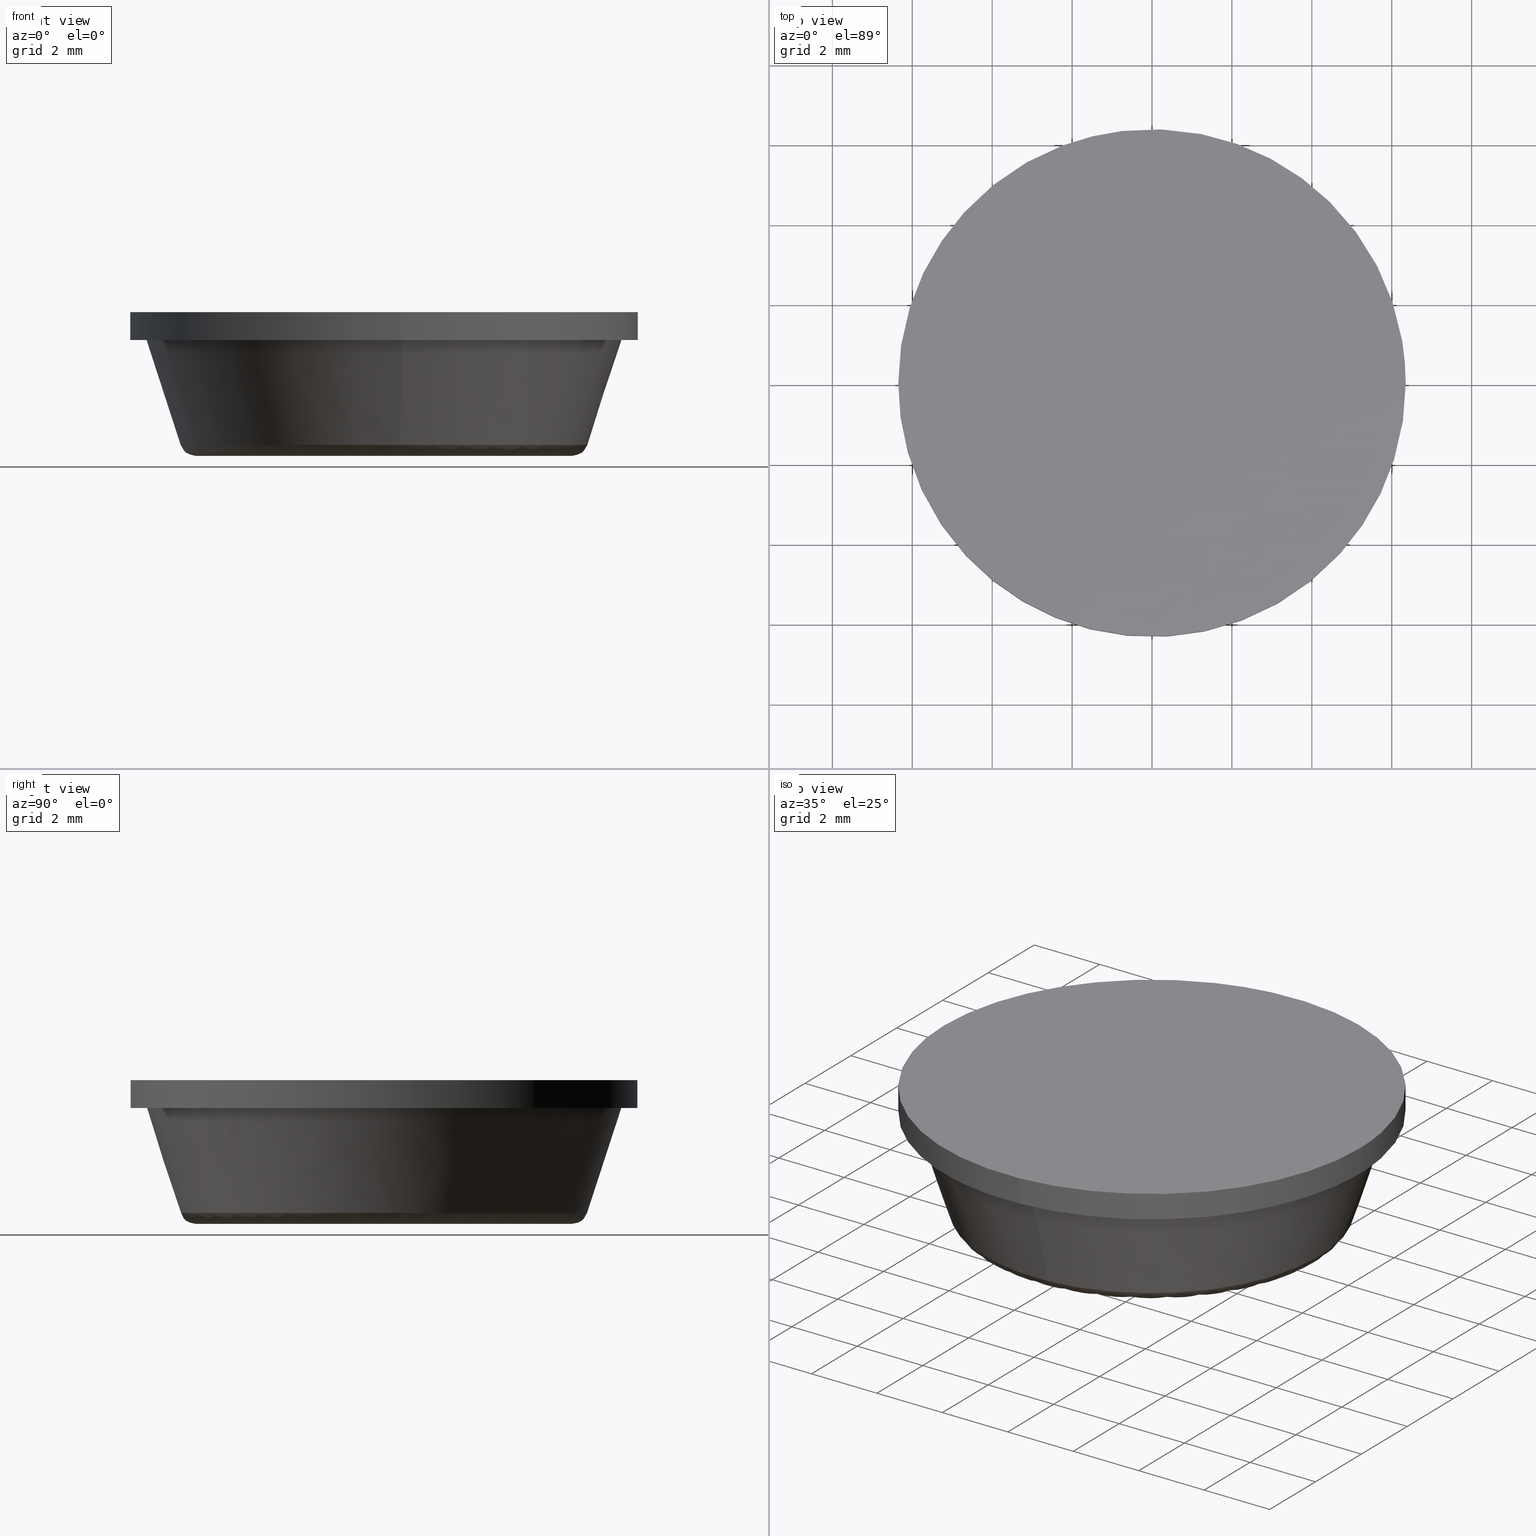
[diagram: canonical four-view strip — front | top / right | iso, engineering-drawing reading convention]
A machine part, canonical four-view strip (front | top / right | iso — engineering-drawing reading convention). The complete STEP part file that produces these views, byte-faithful:
ISO-10303-21;
HEADER;
/****************************************************************
 * Generated by software with PDE/Lib inside                    *
 * PDElib Version 4.4.1-0003, patched  Thursday August 19 11:58 *
 * International Technegroup Inc. (www.iti-oh.com)              *
 ****************************************************************/
FILE_DESCRIPTION((''),'2;1');
FILE_NAME('','2005-12-14T15:42:00',(''),(''),'','CADfix','');
FILE_SCHEMA(('AUTOMOTIVE_DESIGN'));
ENDSEC;
DATA;
#5=APPLICATION_CONTEXT('automotive design');
#6=APPLICATION_PROTOCOL_DEFINITION('Draft International Standard','automotive_design',1998,#5);
#7=PRODUCT_CONTEXT('None',#5,'mechanical');
#8=PRODUCT('rubber foot','','None',(#7));
#9=PRODUCT_RELATED_PRODUCT_CATEGORY('part','description',(#8));
#10=PRODUCT_DEFINITION_FORMATION('None','None',#8);
#11=PRODUCT_DEFINITION_CONTEXT('part definition',#5,'design');
#12=PRODUCT_DEFINITION('None','None',#10,#11);
#18=(NAMED_UNIT(*)PLANE_ANGLE_UNIT()SI_UNIT($,.RADIAN.));
#19=DIMENSIONAL_EXPONENTS(0.0,0.0,0.0,0.0,0.0,0.0,0.0);
#20=PLANE_ANGLE_MEASURE_WITH_UNIT(PLANE_ANGLE_MEASURE(0.017453292500000),#18);
#24=(CONVERSION_BASED_UNIT('DEGREE',#20)NAMED_UNIT(#19)PLANE_ANGLE_UNIT());
#28=(NAMED_UNIT(*)SI_UNIT($,.STERADIAN.)SOLID_ANGLE_UNIT());
#32=(LENGTH_UNIT()NAMED_UNIT(*)SI_UNIT(.MILLI.,.METRE.));
#34=UNCERTAINTY_MEASURE_WITH_UNIT(LENGTH_MEASURE(0.001000000000000),#32,'DISTANCE_ACCURACY_VALUE','');
#36=(GEOMETRIC_REPRESENTATION_CONTEXT(3)GLOBAL_UNCERTAINTY_ASSIGNED_CONTEXT((#34))GLOBAL_UNIT_ASSIGNED_CONTEXT((#24,#28,#32))REPRESENTATION_CONTEXT('None','None'));
#37=AXIS2_PLACEMENT_3D('',#38,#39,#40);
#38=CARTESIAN_POINT('',(0.0,0.0,0.0));
#39=DIRECTION('',(0.0,0.0,1.0));
#40=DIRECTION('',(1.0,0.0,0.0));
#41=ADVANCED_BREP_SHAPE_REPRESENTATION('',(#37,#645),#36);
#42=PRODUCT_DEFINITION_SHAPE('','',#12);
#43=SHAPE_DEFINITION_REPRESENTATION(#42,#41);
#44=CARTESIAN_POINT('',(-4.713012299098148,-1.864711029409133,0.210803032301656));
#45=CARTESIAN_POINT('',(-3.335371016258308,-5.346666253231072,0.210803032301656));
#46=CARTESIAN_POINT('',(0.397669461565919,-5.052869595980917,0.210803032301656));
#47=CARTESIAN_POINT('',(-5.545814915031673,-2.194210747360045,2.967229924192459));
#48=CARTESIAN_POINT('',(-3.924740517369158,-6.291437316753732,2.967229924192459));
#49=CARTESIAN_POINT('',(0.467938781239102,-5.945725958420095,2.967229924192459));
#57=(BOUNDED_SURFACE()B_SPLINE_SURFACE(2,1,((#44,#47),(#45,#48),(#46,#49)),.UNSPECIFIED.,.F.,.F.,.U.)B_SPLINE_SURFACE_WITH_KNOTS((3,3),(2,2),(0.0,7.851446740555091),(0.0,2.898278708401635),.UNSPECIFIED.)GEOMETRIC_REPRESENTATION_ITEM()RATIONAL_B_SPLINE_SURFACE(((0.906274169979695,0.906274169979695),(0.765685424949238,0.765685424949238),(1.0,1.0)))REPRESENTATION_ITEM('')SURFACE());
#58=CARTESIAN_POINT('',(0.466222470442264,-5.923948546619458,2.899998103247859));
#59=VERTEX_POINT('',#58);
#60=CARTESIAN_POINT('',(-5.525502656105997,-2.186174168874863,2.900000000000284));
#61=VERTEX_POINT('',#60);
#62=CARTESIAN_POINT('',(0.466222470442264,-5.923948546619459,2.899998103247860));
#63=CARTESIAN_POINT('',(0.233471065417052,-5.942266401944268,2.899998153683463));
#64=CARTESIAN_POINT('',(-0.000000045711487,-5.942266419177854,2.899998206887088));
#65=CARTESIAN_POINT('',(-4.039398402529002,-5.942266717344607,2.899999127389149));
#66=CARTESIAN_POINT('',(-5.525502656105997,-2.186174168874862,2.900000000000284));
#74=(BOUNDED_CURVE()B_SPLINE_CURVE(2,(#62,#63,#64,#65,#66),.UNSPECIFIED.,.F.,.U.)B_SPLINE_CURVE_WITH_KNOTS((3,2,3),(0.736331369405652,0.750000000000000,0.937532549939383),.UNSPECIFIED.)CURVE()GEOMETRIC_REPRESENTATION_ITEM()RATIONAL_B_SPLINE_CURVE((0.969723499695625,0.983986203153798,1.0,0.780291951263839,0.890203187501265))REPRESENTATION_ITEM(''));
#75=EDGE_CURVE('',#59,#61,#74,.T.);
#76=ORIENTED_EDGE('',*,*,#75,.T.);
#77=CARTESIAN_POINT('',(-4.732829137074683,-1.872551593788798,0.276393202250402));
#78=VERTEX_POINT('',#77);
#79=CARTESIAN_POINT('',(-4.732829137074683,-1.872551593788798,0.276393202250402));
#80=CARTESIAN_POINT('',(-5.525502656105997,-2.186174168874863,2.900000000000284));
#81=QUASI_UNIFORM_CURVE('',1,(#79,#80),.UNSPECIFIED.,.F.,.U.);
#82=EDGE_CURVE('',#78,#61,#81,.T.);
#83=ORIENTED_EDGE('',*,*,#82,.F.);
#84=CARTESIAN_POINT('',(0.399341545321534,-5.074115434469849,0.276393202250665));
#85=VERTEX_POINT('',#84);
#86=CARTESIAN_POINT('',(0.399341545321534,-5.074115434469849,0.276393202250665));
#87=CARTESIAN_POINT('',(0.199979006931943,-5.089805606518070,0.276393202250013));
#88=CARTESIAN_POINT('',(0.0,-5.089805606518071,0.276393202250013));
#89=CARTESIAN_POINT('',(-3.459917321607990,-5.089805606518072,0.276393202250013));
#90=CARTESIAN_POINT('',(-4.732829137074683,-1.872551593788798,0.276393202250402));
#98=(BOUNDED_CURVE()B_SPLINE_CURVE(2,(#86,#87,#88,#89,#90),.UNSPECIFIED.,.F.,.U.)B_SPLINE_CURVE_WITH_KNOTS((3,2,3),(0.736331300632524,0.750000000000000,0.937532549939335),.UNSPECIFIED.)CURVE()GEOMETRIC_REPRESENTATION_ITEM()RATIONAL_B_SPLINE_CURVE((0.969723356171309,0.983986122581066,1.0,0.780291951263895,0.890203187501209))REPRESENTATION_ITEM(''));
#99=EDGE_CURVE('',#85,#78,#98,.T.);
#100=ORIENTED_EDGE('',*,*,#99,.F.);
#101=CARTESIAN_POINT('',(0.399341545321534,-5.074115434469849,0.276393202250665));
#102=CARTESIAN_POINT('',(0.466222470442264,-5.923948546619458,2.899998103247859));
#103=QUASI_UNIFORM_CURVE('',1,(#101,#102),.UNSPECIFIED.,.F.,.U.);
#104=EDGE_CURVE('',#85,#59,#103,.T.);
#105=ORIENTED_EDGE('',*,*,#104,.T.);
#106=EDGE_LOOP('',(#76,#83,#100,#105));
#107=FACE_OUTER_BOUND('',#106,.T.);
#108=ADVANCED_FACE('',(#107),#57,.T.);
#109=CARTESIAN_POINT('',(0.397669461565919,-5.052869595980917,0.210803032301656));
#110=CARTESIAN_POINT('',(5.450539057546835,-4.655200134414998,0.210803032301656));
#111=CARTESIAN_POINT('',(5.052869595980917,0.397669461565919,0.210803032301656));
#112=CARTESIAN_POINT('',(4.655200134414998,5.450539057546835,0.210803032301656));
#113=CARTESIAN_POINT('',(-0.397669461565919,5.052869595980917,0.210803032301656));
#114=CARTESIAN_POINT('',(-5.450539057546835,4.655200134414998,0.210803032301656));
#115=CARTESIAN_POINT('',(-5.052869595980917,-0.397669461565919,0.210803032301656));
#116=CARTESIAN_POINT('',(-4.993131250110380,-1.156717114797357,0.210803032301656));
#117=CARTESIAN_POINT('',(-4.713012299098148,-1.864711029409133,0.210803032301656));
#118=CARTESIAN_POINT('',(0.467938781239102,-5.945725958420095,2.967229924192459));
#119=CARTESIAN_POINT('',(6.413664739659197,-5.477787177180994,2.967229924192458));
#120=CARTESIAN_POINT('',(5.945725958420095,0.467938781239102,2.967229924192459));
#121=CARTESIAN_POINT('',(5.477787177180994,6.413664739659197,2.967229924192458));
#122=CARTESIAN_POINT('',(-0.467938781239102,5.945725958420095,2.967229924192459));
#123=CARTESIAN_POINT('',(-6.413664739659197,5.477787177180994,2.967229924192458));
#124=CARTESIAN_POINT('',(-5.945725958420095,-0.467938781239102,2.967229924192459));
#125=CARTESIAN_POINT('',(-5.875431677713140,-1.361112303683804,2.967229924192459));
#126=CARTESIAN_POINT('',(-5.545814915031673,-2.194210747360045,2.967229924192459));
#134=(BOUNDED_SURFACE()B_SPLINE_SURFACE(2,1,((#109,#118),(#110,#119),(#111,#120),(#112,#121),(#113,#122),(#114,#123),(#115,#124),(#116,#125),(#117,#126)),.UNSPECIFIED.,.F.,.F.,.U.)B_SPLINE_SURFACE_WITH_KNOTS((3,2,2,2,3),(2,2),(0.0,9.881663190302827,19.763326380605658,29.644989570908479,31.621322208969051),(0.0,2.898278708401635),.UNSPECIFIED.)GEOMETRIC_REPRESENTATION_ITEM()RATIONAL_B_SPLINE_SURFACE(((1.0,1.0),(0.707106781186548,0.707106781186548),(1.0,1.0),(0.707106781186548,0.707106781186548),(1.0,1.0),(0.707106781186548,0.707106781186548),(1.0,1.0),(0.941421356237310,0.941421356237310),(0.906274169979695,0.906274169979695)))REPRESENTATION_ITEM('')SURFACE());
#135=CARTESIAN_POINT('',(-5.942267000000000,0.0,2.900000000000000));
#136=VERTEX_POINT('',#135);
#137=CARTESIAN_POINT('',(-5.525502656105997,-2.186174168874862,2.900000000000284));
#138=CARTESIAN_POINT('',(-5.942267000000001,-1.132812308716836,2.900000000000000));
#139=CARTESIAN_POINT('',(-5.942267000000000,0.0,2.900000000000000));
#147=(BOUNDED_CURVE()B_SPLINE_CURVE(2,(#137,#138,#139),.UNSPECIFIED.,.F.,.U.)B_SPLINE_CURVE_WITH_KNOTS((3,3),(0.937532549939383,1.0),.UNSPECIFIED.)CURVE()GEOMETRIC_REPRESENTATION_ITEM()RATIONAL_B_SPLINE_CURVE((0.890203187501265,0.926814829922709,1.0))REPRESENTATION_ITEM(''));
#148=EDGE_CURVE('',#61,#136,#147,.T.);
#149=ORIENTED_EDGE('',*,*,#148,.T.);
#150=CARTESIAN_POINT('',(5.942267000000000,0.0,2.900000000000000));
#151=VERTEX_POINT('',#150);
#152=CARTESIAN_POINT('',(-5.942267000000000,0.0,2.900000000000000));
#153=CARTESIAN_POINT('',(-5.942267000000001,5.942267000000001,2.900000000000000));
#154=CARTESIAN_POINT('',(0.0,5.942267000000000,2.900000000000000));
#155=CARTESIAN_POINT('',(5.942267000000001,5.942267000000001,2.900000000000000));
#156=CARTESIAN_POINT('',(5.942267000000000,0.0,2.900000000000000));
#164=(BOUNDED_CURVE()B_SPLINE_CURVE(2,(#152,#153,#154,#155,#156),.UNSPECIFIED.,.F.,.U.)B_SPLINE_CURVE_WITH_KNOTS((3,2,3),(0.0,0.250000000000000,0.500000000000000),.UNSPECIFIED.)CURVE()GEOMETRIC_REPRESENTATION_ITEM()RATIONAL_B_SPLINE_CURVE((1.0,0.707106781186548,1.0,0.707106781186548,1.0))REPRESENTATION_ITEM(''));
#165=EDGE_CURVE('',#136,#151,#164,.T.);
#166=ORIENTED_EDGE('',*,*,#165,.T.);
#167=CARTESIAN_POINT('',(5.942267000000000,0.0,2.900000000000000));
#168=CARTESIAN_POINT('',(5.942266975823248,-5.492977017010159,2.899999051623929));
#169=CARTESIAN_POINT('',(0.466222470442264,-5.923948546619459,2.899998103247860));
#177=(BOUNDED_CURVE()B_SPLINE_CURVE(2,(#167,#168,#169),.UNSPECIFIED.,.F.,.U.)B_SPLINE_CURVE_WITH_KNOTS((3,3),(0.500000000000000,0.736331369405652),.UNSPECIFIED.)CURVE()GEOMETRIC_REPRESENTATION_ITEM()RATIONAL_B_SPLINE_CURVE((1.0,0.723120578032750,0.969723499695625))REPRESENTATION_ITEM(''));
#178=EDGE_CURVE('',#151,#59,#177,.T.);
#179=ORIENTED_EDGE('',*,*,#178,.T.);
#180=ORIENTED_EDGE('',*,*,#104,.F.);
#181=CARTESIAN_POINT('',(5.089805606518071,0.0,0.276393202250013));
#182=VERTEX_POINT('',#181);
#183=CARTESIAN_POINT('',(5.089805606518071,0.0,0.276393202250013));
#184=CARTESIAN_POINT('',(5.089805606518071,-4.704967907047252,0.276393202250012));
#185=CARTESIAN_POINT('',(0.399341545321534,-5.074115434469849,0.276393202250665));
#193=(BOUNDED_CURVE()B_SPLINE_CURVE(2,(#183,#184,#185),.UNSPECIFIED.,.F.,.U.)B_SPLINE_CURVE_WITH_KNOTS((3,3),(0.500000000000000,0.736331300632524),.UNSPECIFIED.)CURVE()GEOMETRIC_REPRESENTATION_ITEM()RATIONAL_B_SPLINE_CURVE((1.0,0.723120658605481,0.969723356171309))REPRESENTATION_ITEM(''));
#194=EDGE_CURVE('',#182,#85,#193,.T.);
#195=ORIENTED_EDGE('',*,*,#194,.F.);
#196=CARTESIAN_POINT('',(0.877675751714208,5.013562245248458,0.276393202245518));
#197=VERTEX_POINT('',#196);
#198=CARTESIAN_POINT('',(0.877675751714208,5.013562245248458,0.276393202245518));
#199=CARTESIAN_POINT('',(5.089805606518071,4.276185494786597,0.276393202250013));
#200=CARTESIAN_POINT('',(5.089805606518071,0.0,0.276393202250013));
#208=(BOUNDED_CURVE()B_SPLINE_CURVE(2,(#198,#199,#200),.UNSPECIFIED.,.F.,.U.)B_SPLINE_CURVE_WITH_KNOTS((3,3),(0.279646299375439,0.500000000000000),.UNSPECIFIED.)CURVE()GEOMETRIC_REPRESENTATION_ITEM()RATIONAL_B_SPLINE_CURVE((0.938771991543156,0.741839581386466,1.0))REPRESENTATION_ITEM(''));
#209=EDGE_CURVE('',#197,#182,#208,.T.);
#210=ORIENTED_EDGE('',*,*,#209,.F.);
#211=CARTESIAN_POINT('',(-4.878690106847490,1.450691141708440,0.276393454745976));
#212=VERTEX_POINT('',#211);
#213=CARTESIAN_POINT('',(-4.878690106847490,1.450691141708439,0.276393454745976));
#214=CARTESIAN_POINT('',(-3.796589907877530,5.089805606518072,0.276393202250013));
#215=CARTESIAN_POINT('',(0.0,5.089805606518071,0.276393202250013));
#216=CARTESIAN_POINT('',(0.442149491866362,5.089805606518071,0.276393202250013));
#217=CARTESIAN_POINT('',(0.877675751714208,5.013562245248458,0.276393202245518));
#225=(BOUNDED_CURVE()B_SPLINE_CURVE(2,(#213,#214,#215,#216,#217),.UNSPECIFIED.,.F.,.U.)B_SPLINE_CURVE_WITH_KNOTS((3,2,3),(0.048526611977056,0.250000000000000,0.279646299375439),.UNSPECIFIED.)CURVE()GEOMETRIC_REPRESENTATION_ITEM()RATIONAL_B_SPLINE_CURVE((0.908365934391083,0.763959243506833,1.0,0.965267199800082,0.938771991543156))REPRESENTATION_ITEM(''));
#226=EDGE_CURVE('',#212,#197,#225,.T.);
#227=ORIENTED_EDGE('',*,*,#226,.F.);
#228=CARTESIAN_POINT('',(-5.089805606518071,0.0,0.276393202250013));
#229=VERTEX_POINT('',#228);
#230=CARTESIAN_POINT('',(-5.089805606518071,0.0,0.276393202250013));
#231=CARTESIAN_POINT('',(-5.089805606518071,0.740707129534679,0.276393202250013));
#232=CARTESIAN_POINT('',(-4.878690106847490,1.450691141708439,0.276393454745976));
#240=(BOUNDED_CURVE()B_SPLINE_CURVE(2,(#230,#231,#232),.UNSPECIFIED.,.F.,.U.)B_SPLINE_CURVE_WITH_KNOTS((3,3),(0.0,0.048526611977056),.UNSPECIFIED.)CURVE()GEOMETRIC_REPRESENTATION_ITEM()RATIONAL_B_SPLINE_CURVE((1.0,0.943147537679714,0.908365934391083))REPRESENTATION_ITEM(''));
#241=EDGE_CURVE('',#229,#212,#240,.T.);
#242=ORIENTED_EDGE('',*,*,#241,.F.);
#243=CARTESIAN_POINT('',(-4.732829137074683,-1.872551593788799,0.276393202250402));
#244=CARTESIAN_POINT('',(-5.089805606518071,-0.970302149002113,0.276393202250013));
#245=CARTESIAN_POINT('',(-5.089805606518071,0.0,0.276393202250013));
#253=(BOUNDED_CURVE()B_SPLINE_CURVE(2,(#243,#244,#245),.UNSPECIFIED.,.F.,.U.)B_SPLINE_CURVE_WITH_KNOTS((3,3),(0.937532549939335,1.0),.UNSPECIFIED.)CURVE()GEOMETRIC_REPRESENTATION_ITEM()RATIONAL_B_SPLINE_CURVE((0.890203187501210,0.926814829922653,1.0))REPRESENTATION_ITEM(''));
#254=EDGE_CURVE('',#78,#229,#253,.T.);
#255=ORIENTED_EDGE('',*,*,#254,.F.);
#256=ORIENTED_EDGE('',*,*,#82,.T.);
#257=EDGE_LOOP('',(#149,#166,#179,#180,#195,#210,#227,#242,#255,#256));
#258=FACE_OUTER_BOUND('',#257,.T.);
#259=ADVANCED_FACE('',(#258),#134,.T.);
#260=CARTESIAN_POINT('',(-0.749517390070416,6.305610492409281,3.617500000000001));
#261=CARTESIAN_POINT('',(-0.569053526851158,6.327061358098645,3.617500000000001));
#262=CARTESIAN_POINT('',(-0.387658226046342,6.338155969978853,3.617500000000001));
#263=CARTESIAN_POINT('',(5.950497743932512,6.725814196025195,3.617500000000000));
#264=CARTESIAN_POINT('',(6.338155969978853,0.387658226046342,3.617500000000001));
#265=CARTESIAN_POINT('',(6.725814196025195,-5.950497743932512,3.617500000000000));
#266=CARTESIAN_POINT('',(0.387658226046342,-6.338155969978853,3.617500000000001));
#267=CARTESIAN_POINT('',(-0.749517390070416,6.305610492409281,2.882062500000000));
#268=CARTESIAN_POINT('',(-0.569053526851158,6.327061358098645,2.882062500000000));
#269=CARTESIAN_POINT('',(-0.387658226046342,6.338155969978853,2.882062500000000));
#270=CARTESIAN_POINT('',(5.950497743932512,6.725814196025195,2.882062500000000));
#271=CARTESIAN_POINT('',(6.338155969978853,0.387658226046342,2.882062500000000));
#272=CARTESIAN_POINT('',(6.725814196025195,-5.950497743932512,2.882062500000000));
#273=CARTESIAN_POINT('',(0.387658226046342,-6.338155969978853,2.882062500000000));
#281=(BOUNDED_SURFACE()B_SPLINE_SURFACE(2,1,((#260,#267),(#261,#268),(#262,#269),(#263,#270),(#264,#271),(#265,#272),(#266,#273)),.UNSPECIFIED.,.F.,.F.,.U.)B_SPLINE_SURFACE_WITH_KNOTS((3,2,2,3),(2,2),(0.0,0.420840979371065,10.941865463647680,21.462889947924289),(0.0,1.0),.UNSPECIFIED.)GEOMETRIC_REPRESENTATION_ITEM()RATIONAL_B_SPLINE_SURFACE(((0.977505800795127,0.977505800795127),(0.988284271247462,0.988284271247462),(1.0,1.0),(0.707106781186548,0.707106781186548),(1.0,1.0),(0.707106781186548,0.707106781186548),(1.0,1.0)))REPRESENTATION_ITEM('')SURFACE());
#282=CARTESIAN_POINT('',(-0.749513374682920,6.305610969696359,2.900000000000056));
#283=VERTEX_POINT('',#282);
#284=CARTESIAN_POINT('',(6.350000000000000,0.0,2.900000000000000));
#285=VERTEX_POINT('',#284);
#286=CARTESIAN_POINT('',(-0.749513374682920,6.305610969696359,2.900000000000056));
#287=CARTESIAN_POINT('',(-0.376071130870991,6.350000000000000,2.900000000000000));
#288=CARTESIAN_POINT('',(0.0,6.350000000000000,2.900000000000000));
#289=CARTESIAN_POINT('',(6.350000000000000,6.350000000000000,2.900000000000001));
#290=CARTESIAN_POINT('',(6.350000000000000,0.0,2.900000000000000));
#298=(BOUNDED_CURVE()B_SPLINE_CURVE(2,(#286,#287,#288,#289,#290),.UNSPECIFIED.,.F.,.U.)B_SPLINE_CURVE_WITH_KNOTS((3,2,3),(0.229562581136241,0.250000000000000,0.500000000000000),.UNSPECIFIED.)CURVE()GEOMETRIC_REPRESENTATION_ITEM()RATIONAL_B_SPLINE_CURVE((0.956026965128767,0.976056074419019,1.0,0.707106781186547,1.0))REPRESENTATION_ITEM(''));
#299=EDGE_CURVE('',#283,#285,#298,.T.);
#300=ORIENTED_EDGE('',*,*,#299,.F.);
#301=CARTESIAN_POINT('',(-0.749513424211019,6.305610963809258,3.600000000000000));
#302=VERTEX_POINT('',#301);
#303=CARTESIAN_POINT('',(-0.749513424211019,6.305610963809258,3.600000000000000));
#304=CARTESIAN_POINT('',(-0.749513374682920,6.305610969696359,2.900000000000056));
#305=QUASI_UNIFORM_CURVE('',1,(#303,#304),.UNSPECIFIED.,.F.,.U.);
#306=EDGE_CURVE('',#302,#283,#305,.T.);
#307=ORIENTED_EDGE('',*,*,#306,.F.);
#308=CARTESIAN_POINT('',(6.350000000000000,0.0,3.600000000000000));
#309=VERTEX_POINT('',#308);
#310=CARTESIAN_POINT('',(-0.749513424211019,6.305610963809258,3.600000000000000));
#311=CARTESIAN_POINT('',(-0.376071155896838,6.350000000000000,3.600000000000000));
#312=CARTESIAN_POINT('',(0.0,6.350000000000000,3.600000000000000));
#313=CARTESIAN_POINT('',(6.350000000000000,6.350000000000000,3.600000000000000));
#314=CARTESIAN_POINT('',(6.350000000000000,0.0,3.600000000000000));
#322=(BOUNDED_CURVE()B_SPLINE_CURVE(2,(#310,#311,#312,#313,#314),.UNSPECIFIED.,.F.,.U.)B_SPLINE_CURVE_WITH_KNOTS((3,2,3),(0.229562579808786,0.250000000000000,0.500000000000000),.UNSPECIFIED.)CURVE()GEOMETRIC_REPRESENTATION_ITEM()RATIONAL_B_SPLINE_CURVE((0.956026962526900,0.976056072863809,1.0,0.707106781186547,1.0))REPRESENTATION_ITEM(''));
#323=EDGE_CURVE('',#302,#309,#322,.T.);
#324=ORIENTED_EDGE('',*,*,#323,.T.);
#325=CARTESIAN_POINT('',(0.387655985912206,-6.338156106990533,3.600000000000000));
#326=VERTEX_POINT('',#325);
#327=CARTESIAN_POINT('',(6.350000000000000,0.0,3.600000000000000));
#328=CARTESIAN_POINT('',(6.349999999999999,-5.973485640042394,3.600000000000001));
#329=CARTESIAN_POINT('',(0.387655985912206,-6.338156106990533,3.600000000000000));
#337=(BOUNDED_CURVE()B_SPLINE_CURVE(2,(#327,#328,#329),.UNSPECIFIED.,.F.,.U.)B_SPLINE_CURVE_WITH_KNOTS((3,3),(0.500000000000000,0.739333023226263),.UNSPECIFIED.)CURVE()GEOMETRIC_REPRESENTATION_ITEM()RATIONAL_B_SPLINE_CURVE((1.0,0.719603921835620,0.976072172374189))REPRESENTATION_ITEM(''));
#338=EDGE_CURVE('',#309,#326,#337,.T.);
#339=ORIENTED_EDGE('',*,*,#338,.T.);
#340=CARTESIAN_POINT('',(0.387655957948693,-6.338156108700835,2.900000000000037));
#341=VERTEX_POINT('',#340);
#342=CARTESIAN_POINT('',(0.387655985912206,-6.338156106990533,3.600000000000000));
#343=CARTESIAN_POINT('',(0.387655957948693,-6.338156108700835,2.900000000000037));
#344=QUASI_UNIFORM_CURVE('',1,(#342,#343),.UNSPECIFIED.,.F.,.U.);
#345=EDGE_CURVE('',#326,#341,#344,.T.);
#346=ORIENTED_EDGE('',*,*,#345,.T.);
#347=CARTESIAN_POINT('',(6.350000000000000,0.0,2.900000000000000));
#348=CARTESIAN_POINT('',(6.349999999999999,-5.973485666446256,2.900000000000000));
#349=CARTESIAN_POINT('',(0.387655957948693,-6.338156108700835,2.900000000000037));
#357=(BOUNDED_CURVE()B_SPLINE_CURVE(2,(#347,#348,#349),.UNSPECIFIED.,.F.,.U.)B_SPLINE_CURVE_WITH_KNOTS((3,3),(0.500000000000000,0.739333023987528),.UNSPECIFIED.)CURVE()GEOMETRIC_REPRESENTATION_ITEM()RATIONAL_B_SPLINE_CURVE((1.0,0.719603920943743,0.976072174005725))REPRESENTATION_ITEM(''));
#358=EDGE_CURVE('',#285,#341,#357,.T.);
#359=ORIENTED_EDGE('',*,*,#358,.F.);
#360=EDGE_LOOP('',(#300,#307,#324,#339,#346,#359));
#361=FACE_OUTER_BOUND('',#360,.T.);
#362=ADVANCED_FACE('',(#361),#281,.T.);
#363=CARTESIAN_POINT('',(0.387658226046342,-6.338155969978853,3.617500000000001));
#364=CARTESIAN_POINT('',(-5.950497743932512,-6.725814196025195,3.617500000000000));
#365=CARTESIAN_POINT('',(-6.338155969978853,-0.387658226046342,3.617500000000001));
#366=CARTESIAN_POINT('',(-6.704242349251549,5.597801166830830,3.617500000000001));
#367=CARTESIAN_POINT('',(-0.749517390070416,6.305610492409281,3.617500000000001));
#368=CARTESIAN_POINT('',(0.387658226046342,-6.338155969978853,2.882062500000000));
#369=CARTESIAN_POINT('',(-5.950497743932512,-6.725814196025195,2.882062500000000));
#370=CARTESIAN_POINT('',(-6.338155969978853,-0.387658226046342,2.882062500000000));
#371=CARTESIAN_POINT('',(-6.704242349251549,5.597801166830830,2.882062500000000));
#372=CARTESIAN_POINT('',(-0.749517390070416,6.305610492409281,2.882062500000000));
#380=(BOUNDED_SURFACE()B_SPLINE_SURFACE(2,1,((#363,#368),(#364,#369),(#365,#370),(#366,#371),(#367,#372)),.UNSPECIFIED.,.F.,.F.,.U.)B_SPLINE_SURFACE_WITH_KNOTS((3,2,3),(2,2),(0.0,10.521024484276611,20.621207989182160),(0.0,1.0),.UNSPECIFIED.)GEOMETRIC_REPRESENTATION_ITEM()RATIONAL_B_SPLINE_SURFACE(((1.0,1.0),(0.707106781186548,0.707106781186548),(1.0,1.0),(0.718822509939086,0.718822509939086),(0.977505800795127,0.977505800795127)))REPRESENTATION_ITEM('')SURFACE());
#381=CARTESIAN_POINT('',(-6.350000000000000,0.0,2.900000000000000));
#382=VERTEX_POINT('',#381);
#383=CARTESIAN_POINT('',(-6.350000000000000,0.0,2.900000000000000));
#384=CARTESIAN_POINT('',(-6.350000000000001,5.639911856545724,2.900000000000000));
#385=CARTESIAN_POINT('',(-0.749513374682920,6.305610969696359,2.900000000000056));
#393=(BOUNDED_CURVE()B_SPLINE_CURVE(2,(#383,#384,#385),.UNSPECIFIED.,.F.,.U.)B_SPLINE_CURVE_WITH_KNOTS((3,3),(0.0,0.229562581136241),.UNSPECIFIED.)CURVE()GEOMETRIC_REPRESENTATION_ITEM()RATIONAL_B_SPLINE_CURVE((1.0,0.731050706767529,0.956026965128767))REPRESENTATION_ITEM(''));
#394=EDGE_CURVE('',#382,#283,#393,.T.);
#395=ORIENTED_EDGE('',*,*,#394,.F.);
#396=CARTESIAN_POINT('',(0.387655957948693,-6.338156108700835,2.900000000000037));
#397=CARTESIAN_POINT('',(0.194008909717484,-6.350000000000001,2.900000000000000));
#398=CARTESIAN_POINT('',(0.0,-6.350000000000000,2.900000000000000));
#399=CARTESIAN_POINT('',(-6.350000000000000,-6.350000000000000,2.900000000000001));
#400=CARTESIAN_POINT('',(-6.350000000000000,0.0,2.900000000000000));
#408=(BOUNDED_CURVE()B_SPLINE_CURVE(2,(#396,#397,#398,#399,#400),.UNSPECIFIED.,.F.,.U.)B_SPLINE_CURVE_WITH_KNOTS((3,2,3),(0.739333023987528,0.750000000000000,1.0),.UNSPECIFIED.)CURVE()GEOMETRIC_REPRESENTATION_ITEM()RATIONAL_B_SPLINE_CURVE((0.976072174005725,0.987502860242804,1.0,0.707106781186547,1.0))REPRESENTATION_ITEM(''));
#409=EDGE_CURVE('',#341,#382,#408,.T.);
#410=ORIENTED_EDGE('',*,*,#409,.F.);
#411=ORIENTED_EDGE('',*,*,#345,.F.);
#412=CARTESIAN_POINT('',(-6.350000000000000,0.0,3.600000000000000));
#413=VERTEX_POINT('',#412);
#414=CARTESIAN_POINT('',(0.387655985912206,-6.338156106990533,3.600000000000000));
#415=CARTESIAN_POINT('',(0.194008923738444,-6.350000000000000,3.600000000000000));
#416=CARTESIAN_POINT('',(0.0,-6.350000000000000,3.600000000000000));
#417=CARTESIAN_POINT('',(-6.350000000000000,-6.350000000000000,3.600000000000000));
#418=CARTESIAN_POINT('',(-6.350000000000000,0.0,3.600000000000000));
#426=(BOUNDED_CURVE()B_SPLINE_CURVE(2,(#414,#415,#416,#417,#418),.UNSPECIFIED.,.F.,.U.)B_SPLINE_CURVE_WITH_KNOTS((3,2,3),(0.739333023226263,0.750000000000000,1.0),.UNSPECIFIED.)CURVE()GEOMETRIC_REPRESENTATION_ITEM()RATIONAL_B_SPLINE_CURVE((0.976072172374189,0.987502859350927,1.0,0.707106781186547,1.0))REPRESENTATION_ITEM(''));
#427=EDGE_CURVE('',#326,#413,#426,.T.);
#428=ORIENTED_EDGE('',*,*,#427,.T.);
#429=CARTESIAN_POINT('',(-6.350000000000000,0.0,3.600000000000000));
#430=CARTESIAN_POINT('',(-6.350000000000001,5.639911811934584,3.600000000000001));
#431=CARTESIAN_POINT('',(-0.749513424211019,6.305610963809258,3.600000000000000));
#439=(BOUNDED_CURVE()B_SPLINE_CURVE(2,(#429,#430,#431),.UNSPECIFIED.,.F.,.U.)B_SPLINE_CURVE_WITH_KNOTS((3,3),(0.0,0.229562579808786),.UNSPECIFIED.)CURVE()GEOMETRIC_REPRESENTATION_ITEM()RATIONAL_B_SPLINE_CURVE((1.0,0.731050708322738,0.956026962526900))REPRESENTATION_ITEM(''));
#440=EDGE_CURVE('',#413,#302,#439,.T.);
#441=ORIENTED_EDGE('',*,*,#440,.T.);
#442=ORIENTED_EDGE('',*,*,#306,.T.);
#443=EDGE_LOOP('',(#395,#410,#411,#428,#441,#442));
#444=FACE_OUTER_BOUND('',#443,.T.);
#445=ADVANCED_FACE('',(#444),#380,.T.);
#446=CARTESIAN_POINT('',(0.878806323483278,5.020017097255795,0.298758745948526));
#447=CARTESIAN_POINT('',(1.169594691955808,4.969111562063745,0.298758745948526));
#448=CARTESIAN_POINT('',(1.452560403880945,4.884970878522400,0.298758745948526));
#449=CARTESIAN_POINT('',(6.337531282403345,3.432410474641454,0.298758745948526));
#450=CARTESIAN_POINT('',(4.884970878522400,-1.452560403880945,0.298758745948526));
#451=CARTESIAN_POINT('',(3.432410474641456,-6.337531282403344,0.298758745948526));
#452=CARTESIAN_POINT('',(-1.452560403880943,-4.884970878522401,0.298758745948526));
#453=CARTESIAN_POINT('',(-6.337531282403344,-3.432410474641456,0.298758745948526));
#454=CARTESIAN_POINT('',(-4.884970878522401,1.452560403880943,0.298758745948526));
#455=CARTESIAN_POINT('',(0.864501099565993,4.938301175640435,-0.018335001152351));
#456=CARTESIAN_POINT('',(1.150556010150949,4.888224281595009,-0.018335001152351));
#457=CARTESIAN_POINT('',(1.428915601521608,4.805453241496649,-0.018335001152351));
#458=CARTESIAN_POINT('',(6.234368843018255,3.376537639975042,-0.018335001152351));
#459=CARTESIAN_POINT('',(4.805453241496649,-1.428915601521608,-0.018335001152351));
#460=CARTESIAN_POINT('',(3.376537639975044,-6.234368843018255,-0.018335001152351));
#461=CARTESIAN_POINT('',(-1.428915601521607,-4.805453241496650,-0.018335001152351));
#462=CARTESIAN_POINT('',(-6.234368843018255,-3.376537639975044,-0.018335001152351));
#463=CARTESIAN_POINT('',(-4.805453241496650,1.428915601521605,-0.018335001152351));
#464=CARTESIAN_POINT('',(0.808076875971959,4.615988329712414,0.000673209411410));
#465=CARTESIAN_POINT('',(1.075461565960180,4.569179852408078,0.000673209411410));
#466=CARTESIAN_POINT('',(1.335653194524397,4.491811109283043,0.000673209411410));
#467=CARTESIAN_POINT('',(5.827464303807438,3.156157914758646,0.000673209411410));
#468=CARTESIAN_POINT('',(4.491811109283043,-1.335653194524397,0.000673209411410));
#469=CARTESIAN_POINT('',(3.156157914758649,-5.827464303807438,0.000673209411410));
#470=CARTESIAN_POINT('',(-1.335653194524396,-4.491811109283044,0.000673209411410));
#471=CARTESIAN_POINT('',(-5.827464303807438,-3.156157914758649,0.000673209411410));
#472=CARTESIAN_POINT('',(-4.491811109283044,1.335653194524396,0.000673209411410));
#480=(BOUNDED_SURFACE()B_SPLINE_SURFACE(2,2,((#446,#455,#464),(#447,#456,#465),(#448,#457,#466),(#449,#458,#467),(#450,#459,#468),(#451,#460,#469),(#452,#461,#470),(#453,#462,#471),(#454,#463,#472)),.UNSPECIFIED.,.F.,.F.,.U.)B_SPLINE_SURFACE_WITH_KNOTS((3,2,2,2,3),(3,3),(0.0,0.675513244057542,9.119436847529892,17.563360451002239,26.007284054474589),(0.0,0.571806611584248),.UNSPECIFIED.)GEOMETRIC_REPRESENTATION_ITEM()RATIONAL_B_SPLINE_SURFACE(((0.876825357577632,0.679709906114283,0.880694277430479),(0.894860977908854,0.693691013864081,0.898809478454658),(0.916331950593392,0.710335186733245,0.920375190042172),(0.647944536082484,0.502282827454490,0.650803538114677),(0.916331950593392,0.710335186733245,0.920375190042172),(0.647944536082484,0.502282827454490,0.650803538114677),(0.916331950593392,0.710335186733245,0.920375190042172),(0.647944536082484,0.502282827454490,0.650803538114677),(0.916331950593392,0.710335186733245,0.920375190042172)))REPRESENTATION_ITEM('')SURFACE());
#481=ORIENTED_EDGE('',*,*,#209,.T.);
#482=ORIENTED_EDGE('',*,*,#194,.T.);
#483=ORIENTED_EDGE('',*,*,#99,.T.);
#484=ORIENTED_EDGE('',*,*,#254,.T.);
#485=ORIENTED_EDGE('',*,*,#241,.T.);
#486=CARTESIAN_POINT('',(-4.514046218408184,1.342264869376201,-4.168770E-015));
#487=VERTEX_POINT('',#486);
#488=CARTESIAN_POINT('',(-4.878690106847490,1.450691141708440,0.276393454745976));
#489=CARTESIAN_POINT('',(-4.792609376474950,1.425095612470213,1.231670E-010));
#490=CARTESIAN_POINT('',(-4.514046218408184,1.342264869376200,-4.168770E-015));
#498=(BOUNDED_CURVE()B_SPLINE_CURVE(2,(#488,#489,#490),.UNSPECIFIED.,.F.,.U.)B_SPLINE_CURVE_WITH_KNOTS((3,3),(-1.673208779246349,-0.312243931240096),.UNSPECIFIED.)CURVE()GEOMETRIC_REPRESENTATION_ITEM()RATIONAL_B_SPLINE_CURVE((0.898480002554690,0.728370818350311,0.902155871954828))REPRESENTATION_ITEM(''));
#499=EDGE_CURVE('',#212,#487,#498,.T.);
#500=ORIENTED_EDGE('',*,*,#499,.T.);
#501=CARTESIAN_POINT('',(-4.709383000000000,0.0,0.0));
#502=VERTEX_POINT('',#501);
#503=CARTESIAN_POINT('',(-4.709383000000000,0.0,0.0));
#504=CARTESIAN_POINT('',(-4.709383000000000,0.685345895502756,0.0));
#505=CARTESIAN_POINT('',(-4.514046218408184,1.342264869376201,-4.168770E-015));
#513=(BOUNDED_CURVE()B_SPLINE_CURVE(2,(#503,#504,#505),.UNSPECIFIED.,.F.,.U.)B_SPLINE_CURVE_WITH_KNOTS((3,3),(0.0,0.048526662064734),.UNSPECIFIED.)CURVE()GEOMETRIC_REPRESENTATION_ITEM()RATIONAL_B_SPLINE_CURVE((1.0,0.943147478998350,0.908365862590102))REPRESENTATION_ITEM(''));
#514=EDGE_CURVE('',#502,#487,#513,.T.);
#515=ORIENTED_EDGE('',*,*,#514,.F.);
#516=CARTESIAN_POINT('',(4.709383000000000,0.0,0.0));
#517=VERTEX_POINT('',#516);
#518=CARTESIAN_POINT('',(4.709383000000000,0.0,0.0));
#519=CARTESIAN_POINT('',(4.709383000000000,-4.709383000000000,0.0));
#520=CARTESIAN_POINT('',(0.0,-4.709383000000000,0.0));
#521=CARTESIAN_POINT('',(-4.709383000000000,-4.709383000000000,0.0));
#522=CARTESIAN_POINT('',(-4.709383000000000,0.0,0.0));
#530=(BOUNDED_CURVE()B_SPLINE_CURVE(2,(#518,#519,#520,#521,#522),.UNSPECIFIED.,.F.,.U.)B_SPLINE_CURVE_WITH_KNOTS((3,2,3),(0.500000000000000,0.750000000000000,1.0),.UNSPECIFIED.)CURVE()GEOMETRIC_REPRESENTATION_ITEM()RATIONAL_B_SPLINE_CURVE((1.0,0.707106781186548,1.0,0.707106781186548,1.0))REPRESENTATION_ITEM(''));
#531=EDGE_CURVE('',#517,#502,#530,.T.);
#532=ORIENTED_EDGE('',*,*,#531,.F.);
#533=CARTESIAN_POINT('',(0.812076449406390,4.638838225777398,-4.163688E-015));
#534=VERTEX_POINT('',#533);
#535=CARTESIAN_POINT('',(0.812076449406390,4.638838225777398,-4.163688E-015));
#536=CARTESIAN_POINT('',(4.709382999999999,3.956574539510612,0.0));
#537=CARTESIAN_POINT('',(4.709383000000000,0.0,0.0));
#545=(BOUNDED_CURVE()B_SPLINE_CURVE(2,(#535,#536,#537),.UNSPECIFIED.,.F.,.U.)B_SPLINE_CURVE_WITH_KNOTS((3,3),(0.279646299376955,0.500000000000000),.UNSPECIFIED.)CURVE()GEOMETRIC_REPRESENTATION_ITEM()RATIONAL_B_SPLINE_CURVE((0.938771991540446,0.741839581388242,1.0))REPRESENTATION_ITEM(''));
#546=EDGE_CURVE('',#534,#517,#545,.T.);
#547=ORIENTED_EDGE('',*,*,#546,.F.);
#548=CARTESIAN_POINT('',(0.877675751714208,5.013562245248458,0.276393202245518));
#549=CARTESIAN_POINT('',(0.862189857100697,4.925101903943657,6.055387E-010));
#550=CARTESIAN_POINT('',(0.812076449406390,4.638838225777398,-4.163688E-015));
#558=(BOUNDED_CURVE()B_SPLINE_CURVE(2,(#548,#549,#550),.UNSPECIFIED.,.F.,.U.)B_SPLINE_CURVE_WITH_KNOTS((3,3),(-1.673208012388979,-0.312243933166008),.UNSPECIFIED.)CURVE()GEOMETRIC_REPRESENTATION_ITEM()RATIONAL_B_SPLINE_CURVE((0.859742858480119,0.696968018905094,0.863260429847121))REPRESENTATION_ITEM(''));
#559=EDGE_CURVE('',#197,#534,#558,.T.);
#560=ORIENTED_EDGE('',*,*,#559,.F.);
#561=EDGE_LOOP('',(#481,#482,#483,#484,#485,#500,#515,#532,#547,#560));
#562=FACE_OUTER_BOUND('',#561,.T.);
#563=ADVANCED_FACE('',(#562),#480,.T.);
#564=CARTESIAN_POINT('',(-4.884970876315607,1.452560403224749,0.298758737148459));
#565=CARTESIAN_POINT('',(-3.591477892294127,5.802586427365116,0.298758737148459));
#566=CARTESIAN_POINT('',(0.878805757042512,5.020017194079821,0.298758737148459));
#567=CARTESIAN_POINT('',(-4.805453272818444,1.428915610835236,-0.018334846801066));
#568=CARTESIAN_POINT('',(-3.533015780187605,5.708131868991735,-0.018334846801066));
#569=CARTESIAN_POINT('',(0.864500548371087,4.938301305306941,-0.018334846801066));
#570=CARTESIAN_POINT('',(-4.491811291443363,1.335653248690303,0.000673198371671));
#571=CARTESIAN_POINT('',(-3.302423158302102,5.335573925401372,0.000673198371671));
#572=CARTESIAN_POINT('',(0.808076388256026,4.615988608025170,0.000673198371671));
#580=(BOUNDED_SURFACE()B_SPLINE_SURFACE(2,2,((#564,#567,#570),(#565,#568,#571),(#566,#569,#572)),.UNSPECIFIED.,.F.,.F.,.U.)B_SPLINE_SURFACE_WITH_KNOTS((3,3),(3,3),(0.0,7.759888838471303),(0.0,0.571806386708115),.UNSPECIFIED.)GEOMETRIC_REPRESENTATION_ITEM()RATIONAL_B_SPLINE_SURFACE(((0.916331943218627,0.710335268001854,0.920375031981885),(0.669415523855809,0.518927075566617,0.672369154799793),(0.876825316120576,0.679709957212216,0.880694091632750)))REPRESENTATION_ITEM('')SURFACE());
#581=ORIENTED_EDGE('',*,*,#226,.T.);
#582=ORIENTED_EDGE('',*,*,#559,.T.);
#583=CARTESIAN_POINT('',(-4.514046218408184,1.342264869376201,-4.168770E-015));
#584=CARTESIAN_POINT('',(-3.512823776387831,4.709382999999999,0.0));
#585=CARTESIAN_POINT('',(0.0,4.709383000000000,0.0));
#586=CARTESIAN_POINT('',(0.409102323652175,4.709383000000000,0.0));
#587=CARTESIAN_POINT('',(0.812076449406390,4.638838225777398,-4.163688E-015));
#595=(BOUNDED_CURVE()B_SPLINE_CURVE(2,(#583,#584,#585,#586,#587),.UNSPECIFIED.,.F.,.U.)B_SPLINE_CURVE_WITH_KNOTS((3,2,3),(0.048526662064734,0.250000000000000,0.279646299376955),.UNSPECIFIED.)CURVE()GEOMETRIC_REPRESENTATION_ITEM()RATIONAL_B_SPLINE_CURVE((0.908365862590102,0.763959302188197,1.0,0.965267199798305,0.938771991540446))REPRESENTATION_ITEM(''));
#596=EDGE_CURVE('',#487,#534,#595,.T.);
#597=ORIENTED_EDGE('',*,*,#596,.F.);
#598=ORIENTED_EDGE('',*,*,#499,.F.);
#599=EDGE_LOOP('',(#581,#582,#597,#598));
#600=FACE_OUTER_BOUND('',#599,.T.);
#601=ADVANCED_FACE('',(#600),#580,.T.);
#602=CARTESIAN_POINT('',(6.984364856166421,-6.984210541247651,2.900000000000000));
#603=CARTESIAN_POINT('',(-6.984365310353813,-6.984210541247651,2.900000000000000));
#604=CARTESIAN_POINT('',(6.984364856166421,6.984249487816618,2.900000000000000));
#605=CARTESIAN_POINT('',(-6.984365310353813,6.984249487816618,2.900000000000000));
#606=B_SPLINE_SURFACE_WITH_KNOTS('',1,1,((#602,#604),(#603,#605)),.UNSPECIFIED.,.F.,.F.,.U.,(2,2),(2,2),(0.0,13.968730166520240),(0.0,13.968460029064270),.UNSPECIFIED.);
#607=ORIENTED_EDGE('',*,*,#394,.T.);
#608=ORIENTED_EDGE('',*,*,#299,.T.);
#609=ORIENTED_EDGE('',*,*,#358,.T.);
#610=ORIENTED_EDGE('',*,*,#409,.T.);
#611=EDGE_LOOP('',(#607,#608,#609,#610));
#612=FACE_OUTER_BOUND('',#611,.T.);
#613=ORIENTED_EDGE('',*,*,#165,.F.);
#614=ORIENTED_EDGE('',*,*,#148,.F.);
#615=ORIENTED_EDGE('',*,*,#75,.F.);
#616=ORIENTED_EDGE('',*,*,#178,.F.);
#617=EDGE_LOOP('',(#613,#614,#615,#616));
#618=FACE_BOUND('',#617,.T.);
#619=ADVANCED_FACE('',(#612,#618),#606,.T.);
#620=CARTESIAN_POINT('',(5.179850343444604,-5.179799911322315,0.0));
#621=CARTESIAN_POINT('',(-5.179850596075594,-5.179799911322315,0.0));
#622=CARTESIAN_POINT('',(5.179850343444604,5.178790511736138,0.0));
#623=CARTESIAN_POINT('',(-5.179850596075594,5.178790511736138,0.0));
#624=B_SPLINE_SURFACE_WITH_KNOTS('',1,1,((#620,#622),(#621,#623)),.UNSPECIFIED.,.F.,.F.,.U.,(2,2),(2,2),(0.0,10.359700939520200),(0.0,10.358590423058450),.UNSPECIFIED.);
#625=ORIENTED_EDGE('',*,*,#514,.T.);
#626=ORIENTED_EDGE('',*,*,#596,.T.);
#627=ORIENTED_EDGE('',*,*,#546,.T.);
#628=ORIENTED_EDGE('',*,*,#531,.T.);
#629=EDGE_LOOP('',(#625,#626,#627,#628));
#630=FACE_OUTER_BOUND('',#629,.T.);
#631=ADVANCED_FACE('',(#630),#624,.T.);
#632=CARTESIAN_POINT('',(-6.984364856166421,-6.984210541247651,3.600000000000000));
#633=CARTESIAN_POINT('',(6.984365310353813,-6.984210541247651,3.600000000000000));
#634=CARTESIAN_POINT('',(-6.984364856166421,6.984249487816618,3.600000000000000));
#635=CARTESIAN_POINT('',(6.984365310353813,6.984249487816618,3.600000000000000));
#636=B_SPLINE_SURFACE_WITH_KNOTS('',1,1,((#632,#634),(#633,#635)),.UNSPECIFIED.,.F.,.F.,.U.,(2,2),(2,2),(0.0,13.968730166520240),(0.0,13.968460029064270),.UNSPECIFIED.);
#637=ORIENTED_EDGE('',*,*,#427,.F.);
#638=ORIENTED_EDGE('',*,*,#338,.F.);
#639=ORIENTED_EDGE('',*,*,#323,.F.);
#640=ORIENTED_EDGE('',*,*,#440,.F.);
#641=EDGE_LOOP('',(#637,#638,#639,#640));
#642=FACE_OUTER_BOUND('',#641,.T.);
#643=ADVANCED_FACE('',(#642),#636,.T.);
#644=CLOSED_SHELL('',(#108,#259,#362,#445,#563,#601,#619,#631,#643));
#645=MANIFOLD_SOLID_BREP('rubber foot',#644);
#651=(NAMED_UNIT(*)PLANE_ANGLE_UNIT()SI_UNIT($,.RADIAN.));
#652=DIMENSIONAL_EXPONENTS(0.0,0.0,0.0,0.0,0.0,0.0,0.0);
#653=PLANE_ANGLE_MEASURE_WITH_UNIT(PLANE_ANGLE_MEASURE(0.017453292500000),#651);
#657=(CONVERSION_BASED_UNIT('DEGREE',#653)NAMED_UNIT(#652)PLANE_ANGLE_UNIT());
#661=(NAMED_UNIT(*)SI_UNIT($,.STERADIAN.)SOLID_ANGLE_UNIT());
#665=(LENGTH_UNIT()NAMED_UNIT(*)SI_UNIT(.MILLI.,.METRE.));
#667=UNCERTAINTY_MEASURE_WITH_UNIT(LENGTH_MEASURE(0.001000000000000),#665,'DISTANCE_ACCURACY_VALUE','');
#669=(GEOMETRIC_REPRESENTATION_CONTEXT(3)GLOBAL_UNCERTAINTY_ASSIGNED_CONTEXT((#667))GLOBAL_UNIT_ASSIGNED_CONTEXT((#657,#661,#665))REPRESENTATION_CONTEXT('','3D'));
ENDSEC;
END-ISO-10303-21;
